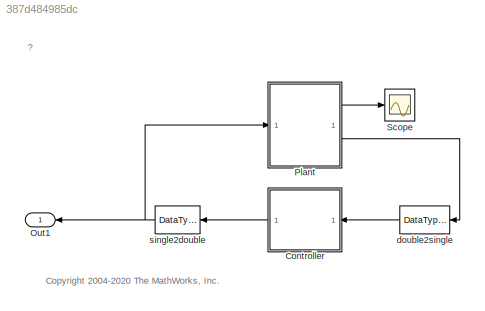
MODEL slx_387d484985dc
KIND model
CONFIG AbsTol = auto
CONFIG EnableMultiTasking = on
CONFIG FixedStep = 0.01
CONFIG MaxStep = auto
CONFIG MinStep = auto
CONFIG PostLoadFcn = overrides={'SupportContinuousTime','SaveTime','SaveOutput','LaunchReport','ProdHWDeviceType','PortableWordSizes','ProdIntDivRoundTo'};\nrtwconfiguredemo(gcs,'ERT','float',overrides{:});\nclear overrides
CONFIG RelTol = 1e-3
CONFIG SampleTimeConstraint = Unconstrained
CONFIG SolverName = ode3
CONFIG StartTime = 0.0
CONFIG StopTime = 10
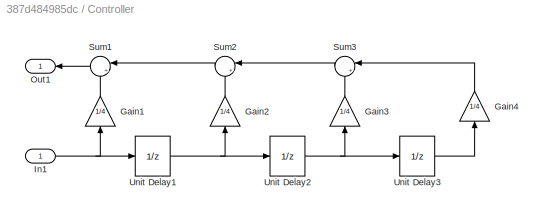
BLOCK [SubSystem] Controller
  PermitHierarchicalResolution = ExplicitOnly
  RTWFcnNameOpts = Use subsystem name
  RTWFileNameOpts = Use function name
  TreatAsAtomicUnit = on
BLOCK [Gain] Controller/Gain1
  Gain = 1/4
  NameLocation = right
  ParamDataTypeStr = Inherit: Same as input
  SaturateOnIntegerOverflow = on
BLOCK [Gain] Controller/Gain2
  Gain = 1/4
  NameLocation = right
  ParamDataTypeStr = Inherit: Same as input
  SaturateOnIntegerOverflow = on
BLOCK [Gain] Controller/Gain3
  Gain = 1/4
  NameLocation = right
  ParamDataTypeStr = Inherit: Same as input
  SaturateOnIntegerOverflow = on
BLOCK [Gain] Controller/Gain4
  Gain = 1/4
  NameLocation = right
  ParamDataTypeStr = Inherit: Same as input
  SaturateOnIntegerOverflow = on
BLOCK [Inport] Controller/In1
  SampleTime = .01
BLOCK [Outport] Controller/Out1
BLOCK [Sum] Controller/Sum1
  InputSameDT = on
  Inputs = |++
  NameLocation = top
  OutDataTypeStr = Inherit: Same as first input
  SaturateOnIntegerOverflow = on
BLOCK [Sum] Controller/Sum2
  InputSameDT = on
  Inputs = |++
  NameLocation = top
  OutDataTypeStr = Inherit: Same as first input
  SaturateOnIntegerOverflow = on
BLOCK [Sum] Controller/Sum3
  InputSameDT = on
  Inputs = |++
  NameLocation = top
  OutDataTypeStr = Inherit: Same as first input
  SaturateOnIntegerOverflow = on
BLOCK [UnitDelay] Controller/Unit Delay1
  HasFrameUpgradeWarning = on
  SampleTime = -1
BLOCK [UnitDelay] Controller/Unit Delay2
  HasFrameUpgradeWarning = on
  SampleTime = -1
BLOCK [UnitDelay] Controller/Unit Delay3
  HasFrameUpgradeWarning = on
  SampleTime = -1
BLOCK [Outport] Out1
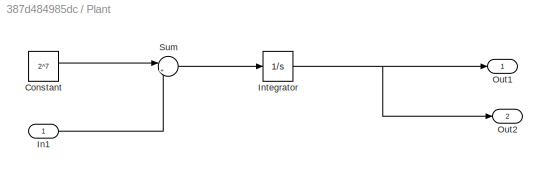
BLOCK [SubSystem] Plant
  PermitHierarchicalResolution = ExplicitOnly
BLOCK [Constant] Plant/Constant
  Value = 2^7
BLOCK [Inport] Plant/In1
BLOCK [Integrator] Plant/Integrator
BLOCK [Outport] Plant/Out1
BLOCK [Outport] Plant/Out2
  Port = 2
BLOCK [Sum] Plant/Sum
  InputSameDT = on
  Inputs = |+-
  NameLocation = top
  OutDataTypeStr = Inherit: Same as first input
  SaturateOnIntegerOverflow = on
BLOCK [Scope] Scope
  Floating = off
  NumInputPorts = 1
  ScopeSpecificationString = Simulink.scopes.TimeScopeBlockCfg('CurrentConfiguration', extmgr.ConfigurationSet(extmgr.Configuration('Core','General UI',true,'ShowNewAction',false,'ShowLoadConfigSet',false,'ShowSaveConfigSet',false,'DisplayFullSourceName',false,'MessageLogAutoOpenMode','for warn/fail messages','MessageLogDialogPosition',[20 520 450 500],'ShowMainToolbar',true,'ShowPlaybackToolbar',false,'ShowStatusbar',true,'S...<+3029ch>
BLOCK [DataTypeConversion] double2single
  OutDataTypeStr = single
  RndMeth = Floor
  SaturateOnIntegerOverflow = off
BLOCK [DataTypeConversion] single2double
  OutDataTypeStr = double
  RndMeth = Floor
  SaturateOnIntegerOverflow = off
ANNOTATION (root): ?
ANNOTATION (root): <copyright redacted>
LINE Controller/Gain1:1 -> Controller/Sum1:2
LINE Controller/Gain2:1 -> Controller/Sum2:2
LINE Controller/Gain3:1 -> Controller/Sum3:2
LINE Controller/Gain4:1 -> Controller/Sum3:1
NET Controller/In1:1 -> Controller/Gain1:1, Controller/Unit Delay1:1
LINE Controller/Sum1:1 -> Controller/Out1:1
LINE Controller/Sum2:1 -> Controller/Sum1:1
LINE Controller/Sum3:1 -> Controller/Sum2:1
NET Controller/Unit Delay1:1 -> Controller/Gain2:1, Controller/Unit Delay2:1
NET Controller/Unit Delay2:1 -> Controller/Gain3:1, Controller/Unit Delay3:1
LINE Controller/Unit Delay3:1 -> Controller/Gain4:1
LINE Controller:1 -> single2double:1
LINE Plant/Constant:1 -> Plant/Sum:1
LINE Plant/In1:1 -> Plant/Sum:2
NET Plant/Integrator:1 -> Plant/Out1:1, Plant/Out2:1
LINE Plant/Sum:1 -> Plant/Integrator:1
LINE Plant:1 -> Scope:1
LINE Plant:2 -> double2single:1
LINE double2single:1 -> Controller:1
NET single2double:1 -> Out1:1, Plant:1
note: NET lines group one-source signal fan-out (src -> all destinations, sorted); 1:1 wires keep LINE
